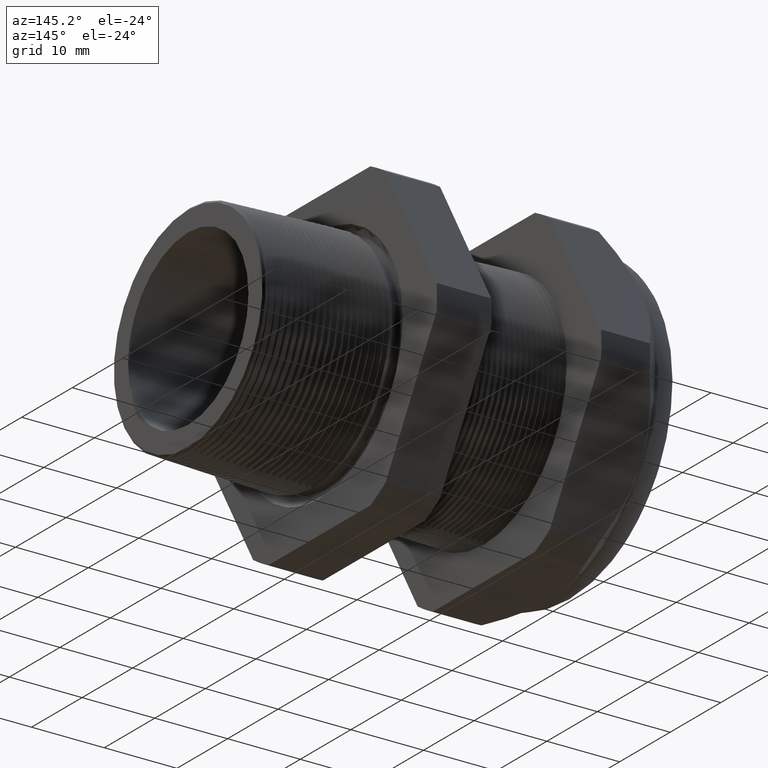
[diagram: clean part render]
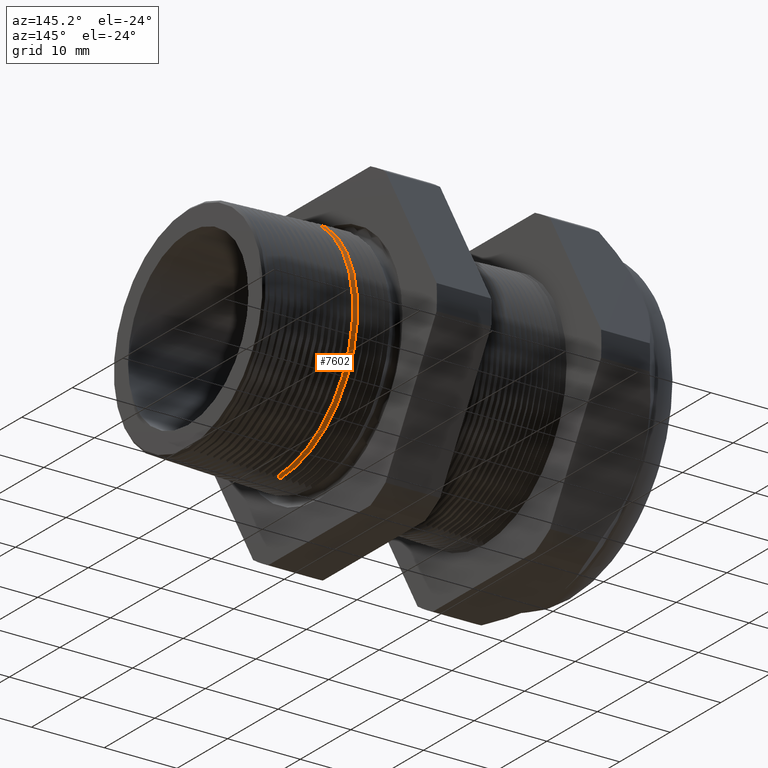
[diagram: same view with one face highlighted and labeled with its STEP entity id]
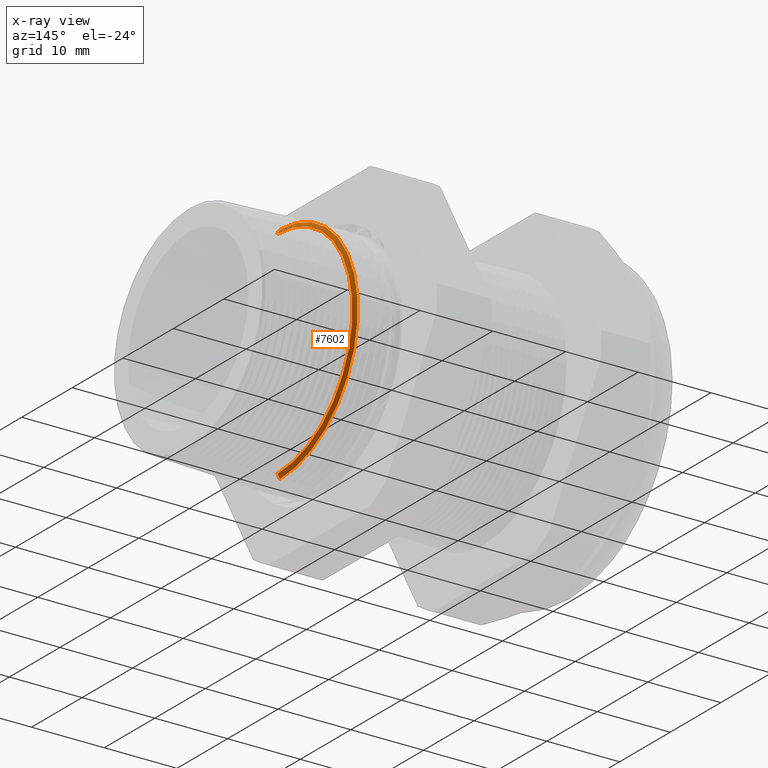
[diagram: x-ray of the same camera — body ghosted, the highlighted face saturated]
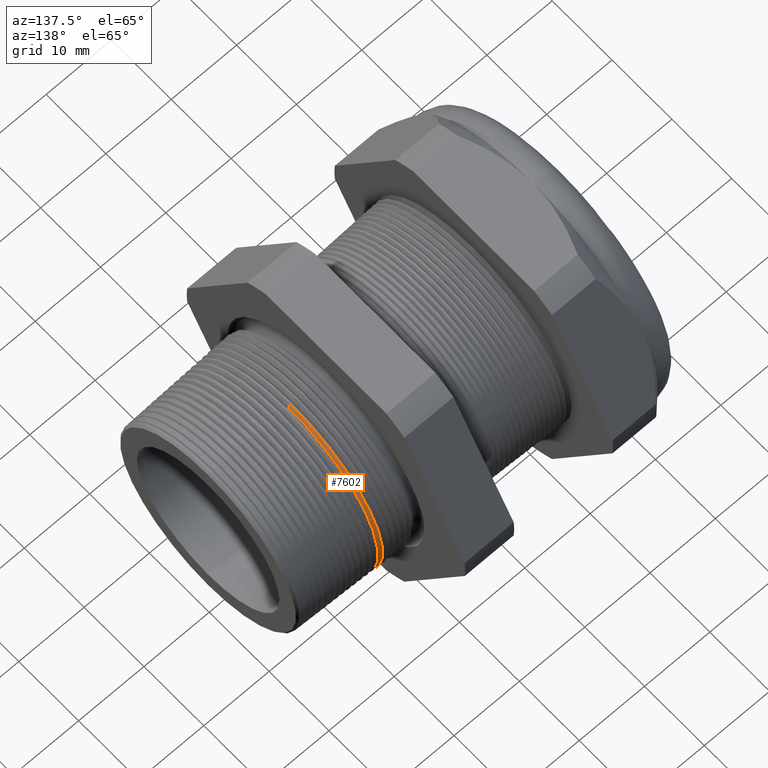
[diagram: same view with one face highlighted and labeled with its STEP entity id]
A machine part, auxiliary view. The second image highlights one B-rep face of the part: STEP entity #7602.
The next image is the same camera in x-ray: the body ghosted, the highlighted face saturated — about 4% of this face is hidden behind the body in this view.
A second angle (auxiliary view) of the same face is appended — the face is thin or edge-on in the first view.
In plain terms, the highlighted conical surface has half-angle 62 deg.
Its self-contained STEP definition (entity closure, byte-faithful):
#6947 = DIRECTION ( 'NONE',  ( -0.4694715627859006300, 0.0000000000000000000, 0.8829475928589217700 ) ) ;
#6948 = VECTOR ( 'NONE', #6947, 39.37007874015748900 ) ;
#6949 = CARTESIAN_POINT ( 'NONE',  ( -0.09999999999999996400, 0.0000000000000000000, 0.6139095164847941900 ) ) ;
#6950 = LINE ( 'NONE', #6949, #6948 ) ;
#6973 = CARTESIAN_POINT ( 'NONE',  ( -0.09602701323886084200, 0.0000000000000000000, 0.0000000000000000000 ) ) ;
#6975 = CARTESIAN_POINT ( 'NONE',  ( -0.09602701323886084200, 0.0000000000000000000, 0.6064374151366493900 ) ) ;
#7026 = DIRECTION ( 'NONE',  ( -0.4694715627859006300, 1.081298943409538900E-016, -0.8829475928589217700 ) ) ;
#7027 = VECTOR ( 'NONE', #7026, 39.37007874015748900 ) ;
#7028 = CARTESIAN_POINT ( 'NONE',  ( -0.09999999999999996400, 7.518223243292024900E-017, -0.6139095164847941900 ) ) ;
#7029 = LINE ( 'NONE', #7028, #7027 ) ;
#7030 = CARTESIAN_POINT ( 'NONE',  ( -0.09602701323886084200, 7.428446302046060300E-017, -0.6064374151366493900 ) ) ;
#7031 = DIRECTION ( 'NONE',  ( 0.0000000000000000000, 0.0000000000000000000, 1.000000000000000000 ) ) ;
#7032 = DIRECTION ( 'NONE',  ( 1.000000000000000000, 0.0000000000000000000, 0.0000000000000000000 ) ) ;
#7033 = AXIS2_PLACEMENT_3D ( 'NONE', #6973, #7032, #7031 ) ;
#7034 = CIRCLE ( 'NONE', #7033, 0.6064374151366493900 ) ;
#7127 = CIRCLE ( 'NONE', #7192, 0.5833233146597484000 ) ;
#7141 = CARTESIAN_POINT ( 'NONE',  ( -0.08373702801092110200, 0.0000000000000000000, 0.5833233146597484000 ) ) ;
#7146 = DIRECTION ( 'NONE',  ( 0.0000000000000000000, 0.0000000000000000000, 1.000000000000000000 ) ) ;
#7147 = DIRECTION ( 'NONE',  ( -1.000000000000000000, 0.0000000000000000000, 0.0000000000000000000 ) ) ;
#7148 = CARTESIAN_POINT ( 'NONE',  ( -0.09999999999999996400, 0.0000000000000000000, 0.0000000000000000000 ) ) ;
#7149 = AXIS2_PLACEMENT_3D ( 'NONE', #7148, #7147, #7146 ) ;
#7150 = CONICAL_SURFACE ( 'NONE', #7149, 0.6139095164847941900, 1.082104136236473200 ) ;
#7151 = FACE_OUTER_BOUND ( 'NONE', #7601, .T. ) ;
#7188 = CARTESIAN_POINT ( 'NONE',  ( -0.08373702801092110200, 7.285183347481887000E-017, -0.5833233146597484000 ) ) ;
#7189 = DIRECTION ( 'NONE',  ( 0.0000000000000000000, 0.0000000000000000000, -1.000000000000000000 ) ) ;
#7190 = DIRECTION ( 'NONE',  ( 1.000000000000000000, 0.0000000000000000000, 0.0000000000000000000 ) ) ;
#7191 = CARTESIAN_POINT ( 'NONE',  ( -0.08373702801092110200, 0.0000000000000000000, 0.0000000000000000000 ) ) ;
#7192 = AXIS2_PLACEMENT_3D ( 'NONE', #7191, #7190, #7189 ) ;
#7512 = EDGE_CURVE ( 'NONE', #7606, #7532, #6950, .T. ) ;
#7514 = ORIENTED_EDGE ( 'NONE', *, *, #7512, .F. ) ;
#7532 = VERTEX_POINT ( 'NONE', #6975 ) ;
#7535 = EDGE_CURVE ( 'NONE', #7537, #7532, #7034, .T. ) ;
#7536 = ORIENTED_EDGE ( 'NONE', *, *, #7535, .T. ) ;
#7537 = VERTEX_POINT ( 'NONE', #7030 ) ;
#7538 = EDGE_CURVE ( 'NONE', #7615, #7537, #7029, .T. ) ;
#7541 = ORIENTED_EDGE ( 'NONE', *, *, #7538, .T. ) ;
#7588 = ORIENTED_EDGE ( 'NONE', *, *, #7614, .F. ) ;
#7601 = EDGE_LOOP ( 'NONE', ( #7588, #7541, #7536, #7514 ) ) ;
#7602 = ADVANCED_FACE ( 'NONE', ( #7151 ), #7150, .T. ) ;
#7606 = VERTEX_POINT ( 'NONE', #7141 ) ;
#7614 = EDGE_CURVE ( 'NONE', #7615, #7606, #7127, .T. ) ;
#7615 = VERTEX_POINT ( 'NONE', #7188 ) ;